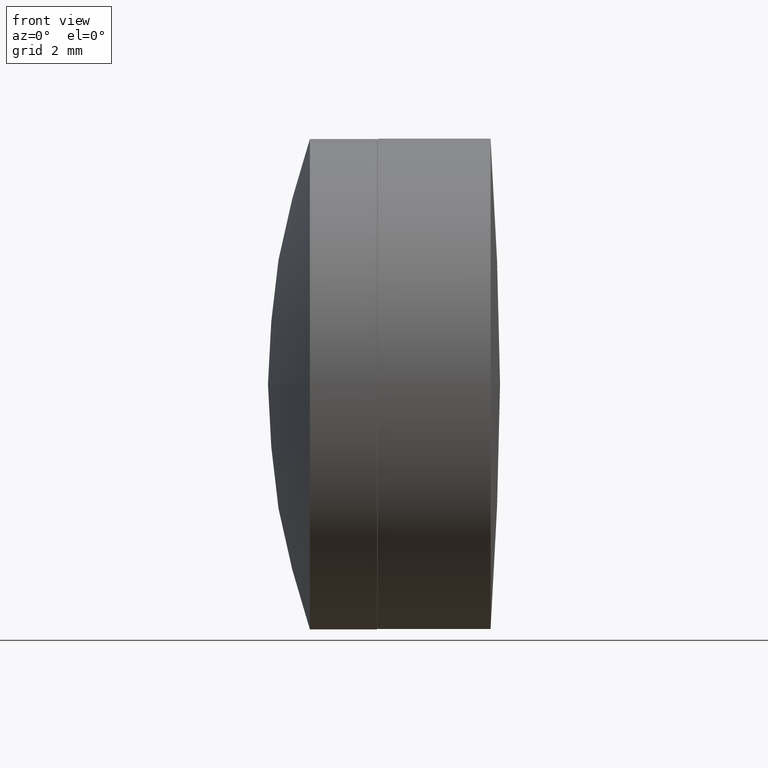
[diagram: clean part render]
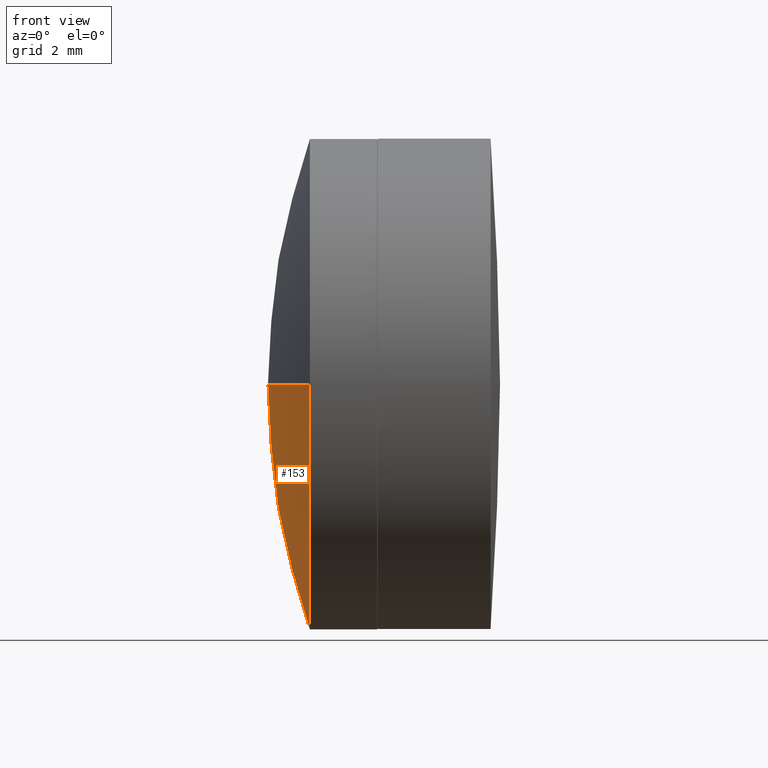
[diagram: same view with one face highlighted and labeled with its STEP entity id]
A machine part, front view. The second image highlights one B-rep face of the part: STEP entity #153.
In plain terms, the highlighted spherical surface has radius 19.12 mm.
Its self-contained STEP definition (entity closure, byte-faithful):
#10 = DIRECTION ( 'NONE',  ( 1.000000000000000000, 0.000000000000000000, 0.000000000000000000 ) ) ;
#22 = VERTEX_POINT ( 'NONE', #218 ) ;
#40 = VERTEX_POINT ( 'NONE', #46 ) ;
#46 = CARTESIAN_POINT ( 'NONE',  ( -80.03096436547446046, 15.49148678616774966, -0.009771238364928054587 ) ) ;
#47 = DIRECTION ( 'NONE',  ( -0.000000000000000000, 0.000000000000000000, -1.000000000000000000 ) ) ;
#56 = EDGE_LOOP ( 'NONE', ( #331, #172, #138, #126 ) ) ;
#67 = VERTEX_POINT ( 'NONE', #152 ) ;
#76 = VERTEX_POINT ( 'NONE', #333 ) ;
#77 = DIRECTION ( 'NONE',  ( -0.000000000000000000, 0.000000000000000000, 1.000000000000000000 ) ) ;
#115 = DIRECTION ( 'NONE',  ( 0.000000000000000000, 0.000000000000000000, 1.000000000000000000 ) ) ;
#121 = DIRECTION ( 'NONE',  ( -1.000000000000000000, -0.000000000000000000, -0.000000000000000000 ) ) ;
#123 = CIRCLE ( 'NONE', #134, 19.12000000000000455 ) ;
#126 = ORIENTED_EDGE ( 'NONE', *, *, #232, .F. ) ;
#134 = AXIS2_PLACEMENT_3D ( 'NONE', #316, #378, #171 ) ;
#138 = ORIENTED_EDGE ( 'NONE', *, *, #297, .T. ) ;
#144 = EDGE_CURVE ( 'NONE', #22, #76, #242, .T. ) ;
#147 = FACE_OUTER_BOUND ( 'NONE', #56, .T. ) ;
#148 = AXIS2_PLACEMENT_3D ( 'NONE', #183, #121, #115 ) ;
#152 = CARTESIAN_POINT ( 'NONE',  ( -78.94570583853140988, 21.84148678616774575, -0.009771238364928054587 ) ) ;
#153 = ADVANCED_FACE ( 'NONE', ( #147 ), #347, .T. ) ;
#159 = AXIS2_PLACEMENT_3D ( 'NONE', #227, #403, #211 ) ;
#171 = DIRECTION ( 'NONE',  ( 0.000000000000000000, 1.000000000000000000, 1.224476499064270716E-16 ) ) ;
#172 = ORIENTED_EDGE ( 'NONE', *, *, #144, .T. ) ;
#183 = CARTESIAN_POINT ( 'NONE',  ( -78.94570583853140988, 15.49148678616774788, -0.009771238364928054587 ) ) ;
#197 = AXIS2_PLACEMENT_3D ( 'NONE', #319, #77, #10 ) ;
#211 = DIRECTION ( 'NONE',  ( 0.000000000000000000, 0.000000000000000000, 1.000000000000000000 ) ) ;
#214 = CARTESIAN_POINT ( 'NONE',  ( -60.91096436547447013, 15.49148678616774788, -0.009771238364928054587 ) ) ;
#218 = CARTESIAN_POINT ( 'NONE',  ( -78.94570583853140988, 15.49148678616774788, -6.359771238364928081 ) ) ;
#227 = CARTESIAN_POINT ( 'NONE',  ( -78.94570583853140988, 15.49148678616774788, -0.009771238364928054587 ) ) ;
#232 = EDGE_CURVE ( 'NONE', #67, #40, #395, .T. ) ;
#242 = CIRCLE ( 'NONE', #159, 6.349999999999999645 ) ;
#267 = CIRCLE ( 'NONE', #148, 6.349999999999999645 ) ;
#297 = EDGE_CURVE ( 'NONE', #76, #40, #123, .T. ) ;
#311 = EDGE_CURVE ( 'NONE', #67, #22, #267, .T. ) ;
#316 = CARTESIAN_POINT ( 'NONE',  ( -60.91096436547447013, 15.49148678616774788, -0.009771238364928054587 ) ) ;
#319 = CARTESIAN_POINT ( 'NONE',  ( -60.91096436547447013, 15.49148678616774788, -0.009771238364928054587 ) ) ;
#331 = ORIENTED_EDGE ( 'NONE', *, *, #311, .T. ) ;
#333 = CARTESIAN_POINT ( 'NONE',  ( -78.94570583853140988, 9.141486786167750012, -0.009771238364928831743 ) ) ;
#335 = AXIS2_PLACEMENT_3D ( 'NONE', #214, #47, #349 ) ;
#347 = SPHERICAL_SURFACE ( 'NONE', #335, 19.12000000000000455 ) ;
#349 = DIRECTION ( 'NONE',  ( 0.000000000000000000, 1.000000000000000000, 0.000000000000000000 ) ) ;
#378 = DIRECTION ( 'NONE',  ( 0.000000000000000000, 1.224646799147353207E-16, -1.000000000000000000 ) ) ;
#395 = CIRCLE ( 'NONE', #197, 19.12000000000000455 ) ;
#403 = DIRECTION ( 'NONE',  ( -1.000000000000000000, -0.000000000000000000, -0.000000000000000000 ) ) ;